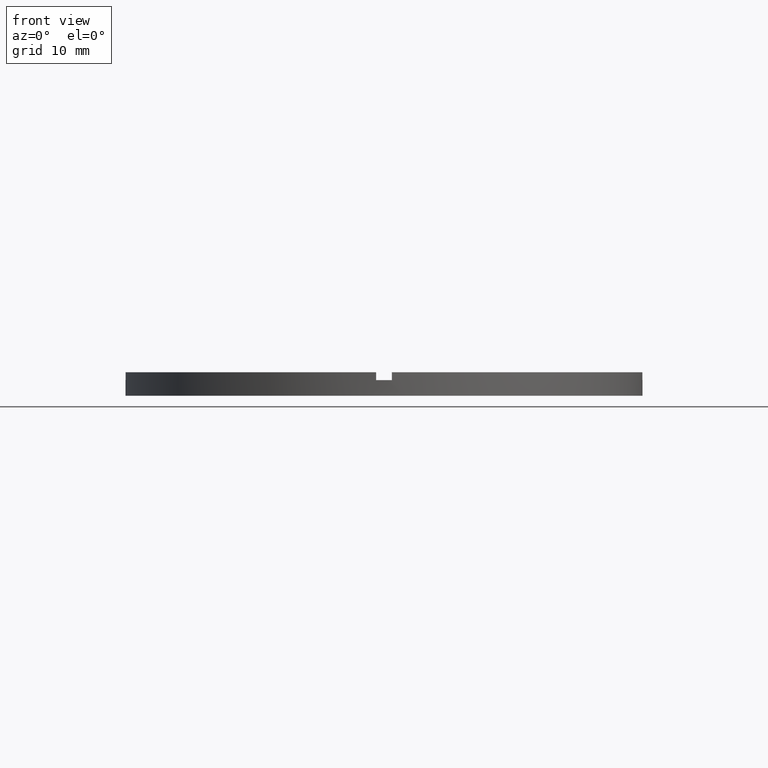
[diagram: clean part render]
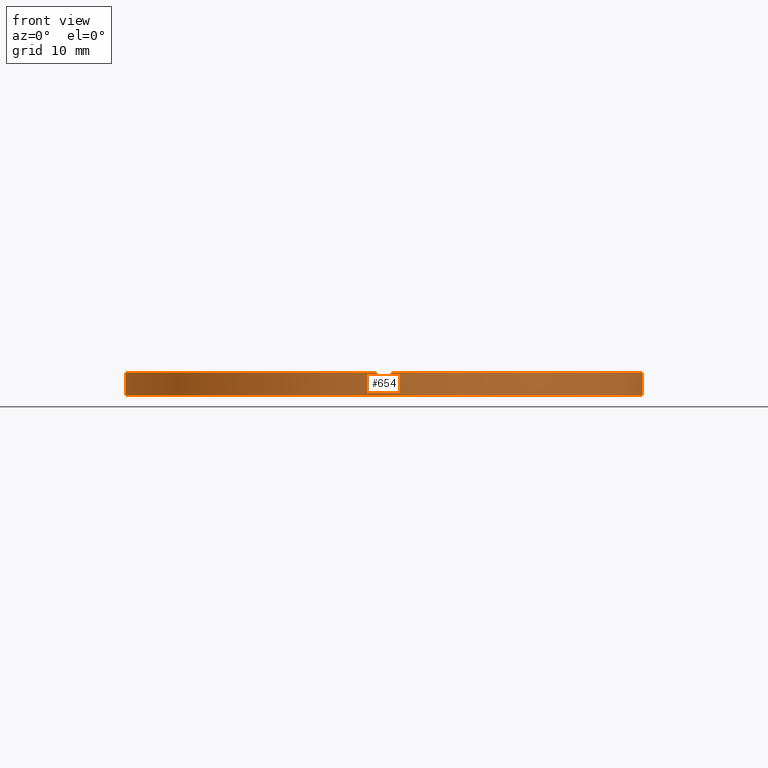
[diagram: same view with one face highlighted and labeled with its STEP entity id]
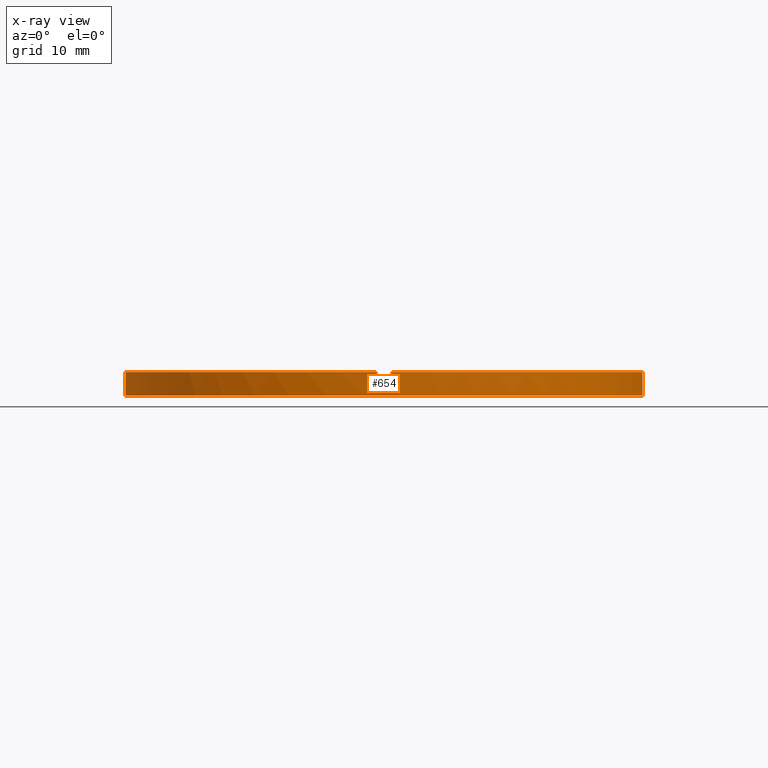
[diagram: x-ray of the same camera — body ghosted, the highlighted face saturated]
A machine part, front view. The second image highlights one B-rep face of the part: STEP entity #654.
The next image is the same camera in x-ray: the body ghosted, the highlighted face saturated — about 0% of this face is hidden behind the body in this view.
In plain terms, the highlighted cylindrical surface (partial cylindrical patch) has radius 33 mm, axis along (-0, -0, -1).
Its self-contained STEP definition (entity closure, byte-faithful):
#4 = AXIS2_PLACEMENT_3D ( 'NONE', #258, #661, #190 ) ;
#8 = ORIENTED_EDGE ( 'NONE', *, *, #720, .F. ) ;
#12 = ORIENTED_EDGE ( 'NONE', *, *, #601, .T. ) ;
#15 = EDGE_CURVE ( 'NONE', #539, #82, #394, .T. ) ;
#20 = DIRECTION ( 'NONE',  ( 0.000000000000000000, 0.000000000000000000, 1.000000000000000000 ) ) ;
#29 = ORIENTED_EDGE ( 'NONE', *, *, #68, .F. ) ;
#33 = DIRECTION ( 'NONE',  ( 1.000000000000000000, 0.000000000000000000, 0.000000000000000000 ) ) ;
#45 = VERTEX_POINT ( 'NONE', #416 ) ;
#47 = LINE ( 'NONE', #479, #67 ) ;
#48 = CIRCLE ( 'NONE', #4, 33.00000000000000000 ) ;
#49 = EDGE_CURVE ( 'NONE', #114, #343, #645, .T. ) ;
#51 = CARTESIAN_POINT ( 'NONE',  ( 0.000000000000000000, 0.000000000000000000, 3.000000000000000000 ) ) ;
#53 = CARTESIAN_POINT ( 'NONE',  ( 0.000000000000000000, 0.000000000000000000, 2.000000000000000000 ) ) ;
#55 = LINE ( 'NONE', #769, #306 ) ;
#67 = VECTOR ( 'NONE', #570, 1000.000000000000000 ) ;
#68 = EDGE_CURVE ( 'NONE', #105, #196, #388, .T. ) ;
#75 = ORIENTED_EDGE ( 'NONE', *, *, #690, .F. ) ;
#82 = VERTEX_POINT ( 'NONE', #503 ) ;
#85 = ORIENTED_EDGE ( 'NONE', *, *, #110, .T. ) ;
#105 = VERTEX_POINT ( 'NONE', #648 ) ;
#106 = DIRECTION ( 'NONE',  ( 1.000000000000000000, 0.000000000000000000, 0.000000000000000000 ) ) ;
#110 = EDGE_CURVE ( 'NONE', #671, #82, #647, .T. ) ;
#112 = ORIENTED_EDGE ( 'NONE', *, *, #251, .T. ) ;
#114 = VERTEX_POINT ( 'NONE', #231 ) ;
#124 = VECTOR ( 'NONE', #477, 1000.000000000000000 ) ;
#126 = AXIS2_PLACEMENT_3D ( 'NONE', #237, #20, #106 ) ;
#129 = ORIENTED_EDGE ( 'NONE', *, *, #270, .F. ) ;
#134 = VECTOR ( 'NONE', #222, 1000.000000000000000 ) ;
#162 = CYLINDRICAL_SURFACE ( 'NONE', #481, 33.00000000000000000 ) ;
#165 = LINE ( 'NONE', #517, #663 ) ;
#170 = CIRCLE ( 'NONE', #675, 33.00000000000000000 ) ;
#171 = CARTESIAN_POINT ( 'NONE',  ( 33.00000000000000000, 4.041334437186266200E-15, 3.000000000000000000 ) ) ;
#190 = DIRECTION ( 'NONE',  ( 1.000000000000000000, 0.000000000000000000, 0.000000000000000000 ) ) ;
#195 = CARTESIAN_POINT ( 'NONE',  ( -1.000000000000160982, -32.98484500494128469, 3.000000000000000000 ) ) ;
#196 = VERTEX_POINT ( 'NONE', #773 ) ;
#222 = DIRECTION ( 'NONE',  ( -0.000000000000000000, -0.000000000000000000, -1.000000000000000000 ) ) ;
#231 = CARTESIAN_POINT ( 'NONE',  ( -1.000000000000160982, -32.98484500494128469, 2.000000000000000000 ) ) ;
#237 = CARTESIAN_POINT ( 'NONE',  ( 0.000000000000000000, 0.000000000000000000, 0.000000000000000000 ) ) ;
#240 = DIRECTION ( 'NONE',  ( -0.000000000000000000, -0.000000000000000000, -1.000000000000000000 ) ) ;
#251 = EDGE_CURVE ( 'NONE', #347, #45, #55, .T. ) ;
#258 = CARTESIAN_POINT ( 'NONE',  ( 0.000000000000000000, 0.000000000000000000, 2.000000000000000000 ) ) ;
#259 = EDGE_CURVE ( 'NONE', #639, #671, #47, .T. ) ;
#260 = DIRECTION ( 'NONE',  ( -0.000000000000000000, -0.000000000000000000, -1.000000000000000000 ) ) ;
#266 = CARTESIAN_POINT ( 'NONE',  ( 33.00000000000000000, 4.041334437186266200E-15, 2.000000000000000000 ) ) ;
#268 = EDGE_LOOP ( 'NONE', ( #365, #8, #637, #29, #12, #129, #643, #606, #112, #75, #349, #85 ) ) ;
#269 = CARTESIAN_POINT ( 'NONE',  ( 0.9999999999998391287, -32.98484500494129179, 2.000000000000000000 ) ) ;
#270 = EDGE_CURVE ( 'NONE', #114, #625, #48, .T. ) ;
#286 = VERTEX_POINT ( 'NONE', #346 ) ;
#306 = VECTOR ( 'NONE', #240, 1000.000000000000000 ) ;
#325 = CARTESIAN_POINT ( 'NONE',  ( 0.000000000000000000, 0.000000000000000000, 3.000000000000000000 ) ) ;
#343 = VERTEX_POINT ( 'NONE', #195 ) ;
#346 = CARTESIAN_POINT ( 'NONE',  ( 32.98484500494128469, -1.000000000000158318, 2.000000000000000000 ) ) ;
#347 = VERTEX_POINT ( 'NONE', #499 ) ;
#349 = ORIENTED_EDGE ( 'NONE', *, *, #259, .T. ) ;
#351 = CARTESIAN_POINT ( 'NONE',  ( 0.000000000000000000, 0.000000000000000000, 3.000000000000000000 ) ) ;
#365 = ORIENTED_EDGE ( 'NONE', *, *, #15, .F. ) ;
#374 = DIRECTION ( 'NONE',  ( 1.000000000000000000, 0.000000000000000000, 0.000000000000000000 ) ) ;
#388 = CIRCLE ( 'NONE', #702, 33.00000000000000000 ) ;
#394 = LINE ( 'NONE', #171, #134 ) ;
#413 = FACE_OUTER_BOUND ( 'NONE', #268, .T. ) ;
#416 = CARTESIAN_POINT ( 'NONE',  ( -32.98484500494128469, -1.000000000000026201, 2.000000000000000000 ) ) ;
#422 = DIRECTION ( 'NONE',  ( 1.000000000000000000, 0.000000000000000000, 0.000000000000000000 ) ) ;
#429 = CIRCLE ( 'NONE', #433, 33.00000000000000000 ) ;
#433 = AXIS2_PLACEMENT_3D ( 'NONE', #448, #777, #374 ) ;
#443 = CARTESIAN_POINT ( 'NONE',  ( 32.98484500494128469, -1.000000000000158318, 3.000000000000000000 ) ) ;
#448 = CARTESIAN_POINT ( 'NONE',  ( 0.000000000000000000, 0.000000000000000000, 2.000000000000000000 ) ) ;
#457 = AXIS2_PLACEMENT_3D ( 'NONE', #51, #528, #33 ) ;
#470 = CARTESIAN_POINT ( 'NONE',  ( -33.00000000000000000, 0.000000000000000000, 0.000000000000000000 ) ) ;
#477 = DIRECTION ( 'NONE',  ( 0.000000000000000000, 0.000000000000000000, 1.000000000000000000 ) ) ;
#479 = CARTESIAN_POINT ( 'NONE',  ( -33.00000000000000000, 0.000000000000000000, 3.000000000000000000 ) ) ;
#481 = AXIS2_PLACEMENT_3D ( 'NONE', #351, #260, #483 ) ;
#483 = DIRECTION ( 'NONE',  ( -1.000000000000000000, 0.000000000000000000, 0.000000000000000000 ) ) ;
#487 = DIRECTION ( 'NONE',  ( 1.000000000000000000, 0.000000000000000000, 0.000000000000000000 ) ) ;
#499 = CARTESIAN_POINT ( 'NONE',  ( -32.98484500494128469, -1.000000000000026201, 3.000000000000000000 ) ) ;
#503 = CARTESIAN_POINT ( 'NONE',  ( 33.00000000000000000, 4.041334437186266200E-15, 0.000000000000000000 ) ) ;
#513 = DIRECTION ( 'NONE',  ( 0.000000000000000000, 0.000000000000000000, 1.000000000000000000 ) ) ;
#517 = CARTESIAN_POINT ( 'NONE',  ( 0.9999999999998391287, -32.98484500494129179, 3.000000000000000000 ) ) ;
#525 = DIRECTION ( 'NONE',  ( 0.000000000000000000, 0.000000000000000000, 1.000000000000000000 ) ) ;
#528 = DIRECTION ( 'NONE',  ( 0.000000000000000000, 0.000000000000000000, 1.000000000000000000 ) ) ;
#539 = VERTEX_POINT ( 'NONE', #266 ) ;
#570 = DIRECTION ( 'NONE',  ( -0.000000000000000000, -0.000000000000000000, -1.000000000000000000 ) ) ;
#601 = EDGE_CURVE ( 'NONE', #105, #625, #165, .T. ) ;
#606 = ORIENTED_EDGE ( 'NONE', *, *, #746, .F. ) ;
#625 = VERTEX_POINT ( 'NONE', #269 ) ;
#637 = ORIENTED_EDGE ( 'NONE', *, *, #687, .T. ) ;
#639 = VERTEX_POINT ( 'NONE', #652 ) ;
#643 = ORIENTED_EDGE ( 'NONE', *, *, #49, .T. ) ;
#645 = LINE ( 'NONE', #755, #124 ) ;
#647 = CIRCLE ( 'NONE', #126, 33.00000000000000000 ) ;
#648 = CARTESIAN_POINT ( 'NONE',  ( 0.9999999999998391287, -32.98484500494129179, 3.000000000000000000 ) ) ;
#652 = CARTESIAN_POINT ( 'NONE',  ( -33.00000000000000000, 0.000000000000000000, 2.000000000000000000 ) ) ;
#654 = ADVANCED_FACE ( 'NONE', ( #413 ), #162, .T. ) ;
#661 = DIRECTION ( 'NONE',  ( -0.000000000000000000, 0.000000000000000000, 1.000000000000000000 ) ) ;
#663 = VECTOR ( 'NONE', #731, 1000.000000000000000 ) ;
#670 = VECTOR ( 'NONE', #525, 1000.000000000000000 ) ;
#671 = VERTEX_POINT ( 'NONE', #470 ) ;
#675 = AXIS2_PLACEMENT_3D ( 'NONE', #53, #694, #487 ) ;
#682 = LINE ( 'NONE', #443, #670 ) ;
#683 = CIRCLE ( 'NONE', #457, 33.00000000000000000 ) ;
#687 = EDGE_CURVE ( 'NONE', #286, #196, #682, .T. ) ;
#690 = EDGE_CURVE ( 'NONE', #639, #45, #429, .T. ) ;
#694 = DIRECTION ( 'NONE',  ( 0.000000000000000000, 0.000000000000000000, 1.000000000000000000 ) ) ;
#702 = AXIS2_PLACEMENT_3D ( 'NONE', #325, #513, #422 ) ;
#720 = EDGE_CURVE ( 'NONE', #286, #539, #170, .T. ) ;
#731 = DIRECTION ( 'NONE',  ( -0.000000000000000000, -0.000000000000000000, -1.000000000000000000 ) ) ;
#746 = EDGE_CURVE ( 'NONE', #347, #343, #683, .T. ) ;
#755 = CARTESIAN_POINT ( 'NONE',  ( -1.000000000000160982, -32.98484500494128469, 3.000000000000000000 ) ) ;
#769 = CARTESIAN_POINT ( 'NONE',  ( -32.98484500494128469, -1.000000000000026201, 3.000000000000000000 ) ) ;
#773 = CARTESIAN_POINT ( 'NONE',  ( 32.98484500494128469, -1.000000000000158318, 3.000000000000000000 ) ) ;
#777 = DIRECTION ( 'NONE',  ( 0.000000000000000000, 0.000000000000000000, 1.000000000000000000 ) ) ;